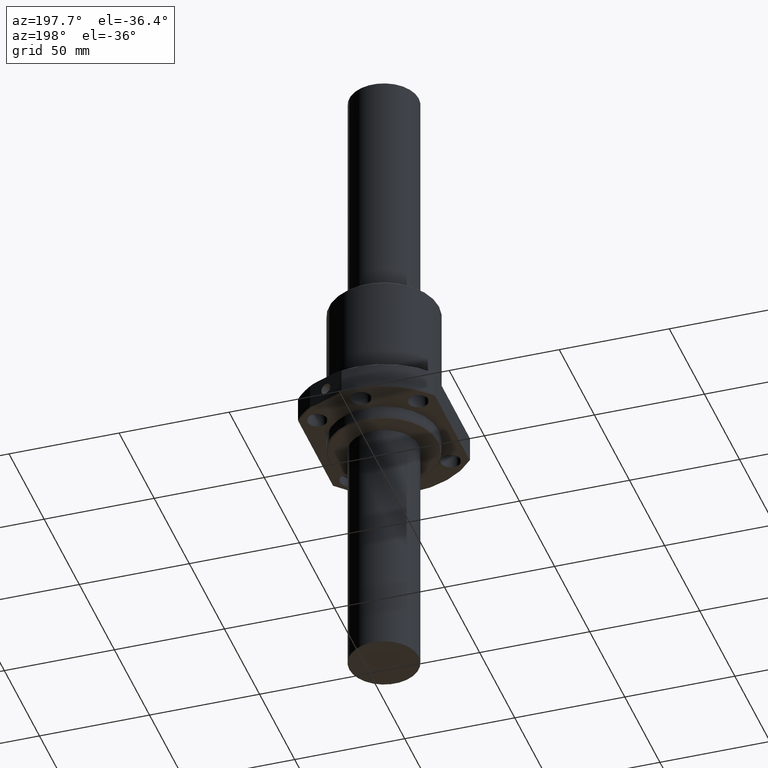
[diagram: clean part render]
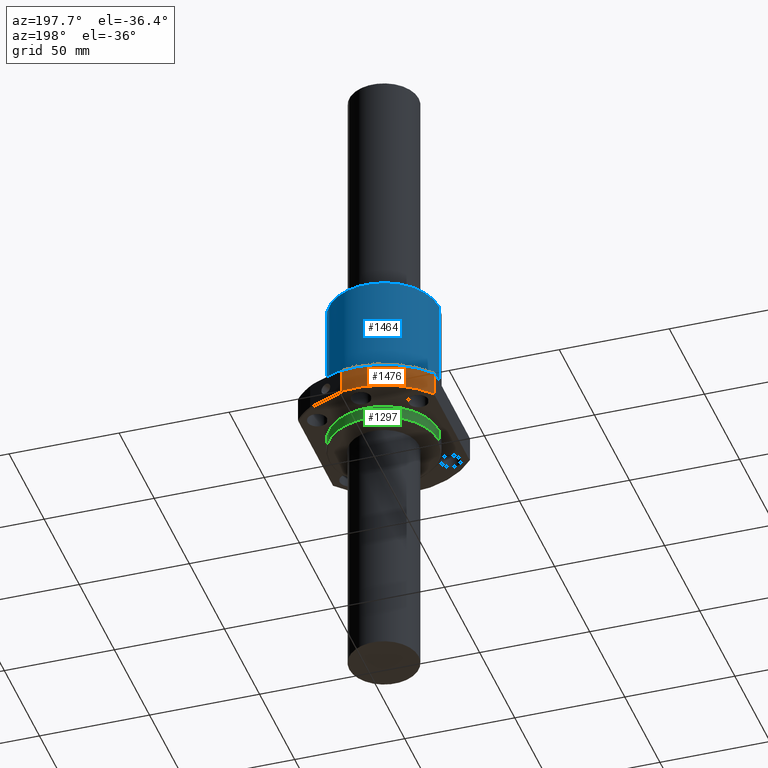
[diagram: same view with three faces highlighted in distinct colors, each labeled with its STEP entity id]
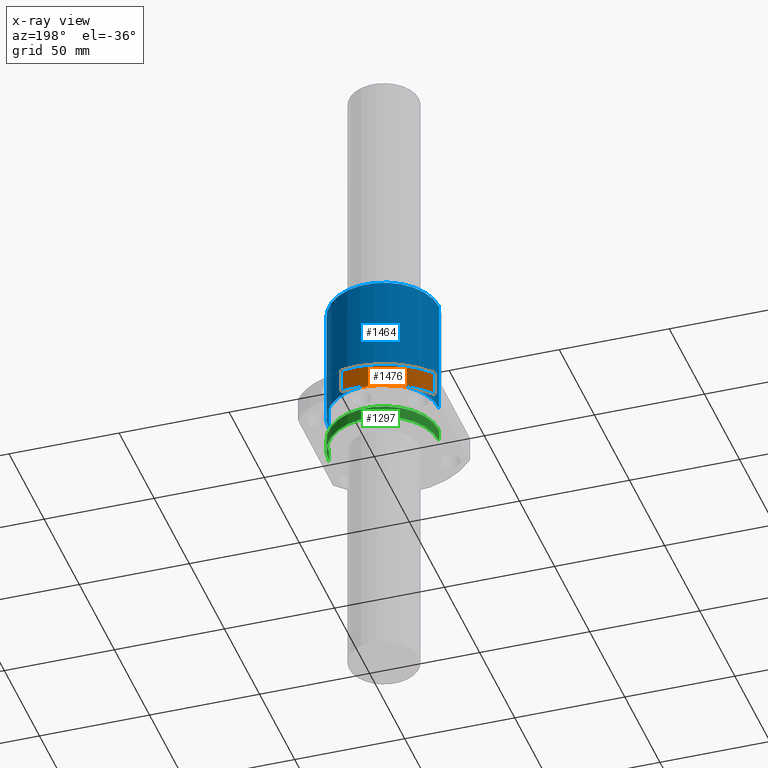
[diagram: x-ray of the same camera — body ghosted, the three highlighted faces saturated]
A machine part, auxiliary view with three faces highlighted in distinct colors.
The next image is the same camera in x-ray (body ghosted, the three faces saturated) — at least one of them is partly hidden behind the body in this view.
Their STEP definitions:

[orange] entity #1476 — the highlighted cylindrical surface (partial cylindrical patch) has radius 40 mm, axis along (0, 0, -1).
#61 = CARTESIAN_POINT ( 'NONE',  ( 30.99999999741311600, 25.27844932364660500, -6.417146550597283100 ) ) ;
#108 = CARTESIAN_POINT ( 'NONE',  ( 0.0000000000000000000, 0.0000000000000000000, -17.58284145000000000 ) ) ;
#172 = CIRCLE ( 'NONE', #1179, 40.00000000000000000 ) ;
#211 = VECTOR ( 'NONE', #728, 1000.000000000000000 ) ;
#253 = DIRECTION ( 'NONE',  ( 1.000000000000000000, -2.664535259100375700E-015, -8.673617379884035500E-017 ) ) ;
#267 = ORIENTED_EDGE ( 'NONE', *, *, #1595, .F. ) ;
#268 = DIRECTION ( 'NONE',  ( 0.0000000000000000000, 0.0000000000000000000, 1.000000000000000000 ) ) ;
#316 = DIRECTION ( 'NONE',  ( -0.0000000000000000000, -0.0000000000000000000, -1.000000000000000000 ) ) ;
#318 = CARTESIAN_POINT ( 'NONE',  ( 30.99999999741311600, 25.27844932478250300, -17.58284144868487400 ) ) ;
#388 = CARTESIAN_POINT ( 'NONE',  ( 30.99999999482623300, 25.27844932587387900, -11.99999399999999900 ) ) ;
#432 = LINE ( 'NONE', #610, #1811 ) ;
#438 = CIRCLE ( 'NONE', #883, 40.00000000000000000 ) ;
#446 = DIRECTION ( 'NONE',  ( 1.000000000000000000, 0.0000000000000000000, 0.0000000000000000000 ) ) ;
#499 = VERTEX_POINT ( 'NONE', #61 ) ;
#569 = VERTEX_POINT ( 'NONE', #1702 ) ;
#610 = CARTESIAN_POINT ( 'NONE',  ( -6.713032958999999500, 39.43266651499999400, -11.99999399999999900 ) ) ;
#688 = LINE ( 'NONE', #388, #211 ) ;
#695 = CARTESIAN_POINT ( 'NONE',  ( 0.0000000000000000000, 0.0000000000000000000, -6.417146550000002700 ) ) ;
#698 = EDGE_CURVE ( 'NONE', #784, #499, #688, .T. ) ;
#728 = DIRECTION ( 'NONE',  ( 0.0000000000000000000, 0.0000000000000000000, 1.000000000000000000 ) ) ;
#780 = DIRECTION ( 'NONE',  ( -0.0000000000000000000, -0.0000000000000000000, -1.000000000000000000 ) ) ;
#784 = VERTEX_POINT ( 'NONE', #318 ) ;
#883 = AXIS2_PLACEMENT_3D ( 'NONE', #1206, #316, #253 ) ;
#885 = EDGE_CURVE ( 'NONE', #1850, #784, #438, .T. ) ;
#1025 = FACE_OUTER_BOUND ( 'NONE', #1213, .T. ) ;
#1061 = DIRECTION ( 'NONE',  ( 0.0000000000000000000, 0.0000000000000000000, 1.000000000000000000 ) ) ;
#1075 = ORIENTED_EDGE ( 'NONE', *, *, #1563, .F. ) ;
#1179 = AXIS2_PLACEMENT_3D ( 'NONE', #695, #1061, #1251 ) ;
#1206 = CARTESIAN_POINT ( 'NONE',  ( 0.0000000000000000000, 0.0000000000000000000, -17.58284144999999700 ) ) ;
#1213 = EDGE_LOOP ( 'NONE', ( #267, #1075, #1589, #1272 ) ) ;
#1251 = DIRECTION ( 'NONE',  ( 1.000000000000000000, 0.0000000000000000000, 8.673617379884035500E-017 ) ) ;
#1272 = ORIENTED_EDGE ( 'NONE', *, *, #885, .F. ) ;
#1476 = ADVANCED_FACE ( 'NONE', ( #1025 ), #1640, .T. ) ;
#1563 = EDGE_CURVE ( 'NONE', #499, #569, #172, .T. ) ;
#1589 = ORIENTED_EDGE ( 'NONE', *, *, #698, .F. ) ;
#1595 = EDGE_CURVE ( 'NONE', #569, #1850, #432, .T. ) ;
#1640 = CYLINDRICAL_SURFACE ( 'NONE', #1758, 40.00000000000000000 ) ;
#1691 = CARTESIAN_POINT ( 'NONE',  ( -6.713032958787483300, 39.43266651508801600, -17.58284145005111300 ) ) ;
#1702 = CARTESIAN_POINT ( 'NONE',  ( -6.713032957733085800, 39.43266651552476500, -6.417146550253594500 ) ) ;
#1758 = AXIS2_PLACEMENT_3D ( 'NONE', #108, #268, #446 ) ;
#1811 = VECTOR ( 'NONE', #780, 1000.000000000000000 ) ;
#1850 = VERTEX_POINT ( 'NONE', #1691 ) ;

[blue] entity #1464 — the highlighted cylindrical surface (partial cylindrical patch) has radius 25 mm, axis along (0, 0, -1).
#87 = VERTEX_POINT ( 'NONE', #648 ) ;
#115 = ORIENTED_EDGE ( 'NONE', *, *, #1271, .F. ) ;
#164 = ORIENTED_EDGE ( 'NONE', *, *, #1166, .T. ) ;
#171 = CARTESIAN_POINT ( 'NONE',  ( -24.99999610000000100, 3.061616520256131400E-015, -17.99999400000000400 ) ) ;
#209 = VERTEX_POINT ( 'NONE', #1714 ) ;
#238 = CIRCLE ( 'NONE', #1617, 24.99999610000000100 ) ;
#246 = DIRECTION ( 'NONE',  ( 0.0000000000000000000, 0.0000000000000000000, 1.000000000000000000 ) ) ;
#281 = CARTESIAN_POINT ( 'NONE',  ( 0.0000000000000000000, 0.0000000000000000000, -72.50000029999999600 ) ) ;
#291 = CIRCLE ( 'NONE', #430, 24.99999610000000100 ) ;
#298 = VECTOR ( 'NONE', #246, 1000.000000000000000 ) ;
#430 = AXIS2_PLACEMENT_3D ( 'NONE', #281, #595, #1130 ) ;
#535 = CARTESIAN_POINT ( 'NONE',  ( 0.0000000000000000000, 0.0000000000000000000, -17.99999400000000400 ) ) ;
#595 = DIRECTION ( 'NONE',  ( -0.0000000000000000000, -0.0000000000000000000, -1.000000000000000000 ) ) ;
#635 = CARTESIAN_POINT ( 'NONE',  ( -24.99999610000000100, 3.061616520256131400E-015, -72.50000029999999600 ) ) ;
#642 = FACE_OUTER_BOUND ( 'NONE', #1118, .T. ) ;
#648 = CARTESIAN_POINT ( 'NONE',  ( 24.99999610000000100, 0.0000000000000000000, -17.99999400000000400 ) ) ;
#675 = VERTEX_POINT ( 'NONE', #772 ) ;
#683 = ORIENTED_EDGE ( 'NONE', *, *, #1175, .F. ) ;
#703 = DIRECTION ( 'NONE',  ( 0.0000000000000000000, 0.0000000000000000000, 1.000000000000000000 ) ) ;
#733 = CYLINDRICAL_SURFACE ( 'NONE', #1068, 24.99999610000000100 ) ;
#742 = LINE ( 'NONE', #1221, #1445 ) ;
#750 = CARTESIAN_POINT ( 'NONE',  ( 0.0000000000000000000, 0.0000000000000000000, -72.50000029999999600 ) ) ;
#772 = CARTESIAN_POINT ( 'NONE',  ( 24.99999610000000100, 0.0000000000000000000, -72.50000029999999600 ) ) ;
#804 = DIRECTION ( 'NONE',  ( -0.0000000000000000000, -0.0000000000000000000, -1.000000000000000000 ) ) ;
#926 = DIRECTION ( 'NONE',  ( 0.0000000000000000000, 0.0000000000000000000, 1.000000000000000000 ) ) ;
#987 = LINE ( 'NONE', #635, #298 ) ;
#1068 = AXIS2_PLACEMENT_3D ( 'NONE', #750, #926, #1111 ) ;
#1111 = DIRECTION ( 'NONE',  ( 1.000000000000000000, 0.0000000000000000000, 0.0000000000000000000 ) ) ;
#1118 = EDGE_LOOP ( 'NONE', ( #683, #164, #1389, #115 ) ) ;
#1130 = DIRECTION ( 'NONE',  ( 1.000000000000000000, 0.0000000000000000000, 0.0000000000000000000 ) ) ;
#1166 = EDGE_CURVE ( 'NONE', #209, #1454, #987, .T. ) ;
#1175 = EDGE_CURVE ( 'NONE', #209, #675, #291, .T. ) ;
#1221 = CARTESIAN_POINT ( 'NONE',  ( 24.99999610000000100, 0.0000000000000000000, -72.50000029999999600 ) ) ;
#1260 = EDGE_CURVE ( 'NONE', #1454, #87, #238, .T. ) ;
#1271 = EDGE_CURVE ( 'NONE', #675, #87, #742, .T. ) ;
#1389 = ORIENTED_EDGE ( 'NONE', *, *, #1260, .T. ) ;
#1445 = VECTOR ( 'NONE', #703, 1000.000000000000000 ) ;
#1454 = VERTEX_POINT ( 'NONE', #171 ) ;
#1464 = ADVANCED_FACE ( 'NONE', ( #642 ), #733, .T. ) ;
#1617 = AXIS2_PLACEMENT_3D ( 'NONE', #535, #804, #1841 ) ;
#1714 = CARTESIAN_POINT ( 'NONE',  ( -24.99999610000000100, 3.061616520256131400E-015, -72.50000029999999600 ) ) ;
#1841 = DIRECTION ( 'NONE',  ( 1.000000000000000000, 0.0000000000000000000, 0.0000000000000000000 ) ) ;

[green] entity #1297 — the highlighted cylindrical surface (partial cylindrical patch) has radius 25 mm, axis along (0, 0, -1).
#40 = CARTESIAN_POINT ( 'NONE',  ( -24.99999610000000100, 0.0000000000000000000, -0.5000000000000000000 ) ) ;
#102 = LINE ( 'NONE', #614, #392 ) ;
#145 = EDGE_LOOP ( 'NONE', ( #487, #617, #309, #538 ) ) ;
#239 = DIRECTION ( 'NONE',  ( 1.000000000000000000, 0.0000000000000000000, 0.0000000000000000000 ) ) ;
#307 = CIRCLE ( 'NONE', #824, 24.99999610000000100 ) ;
#309 = ORIENTED_EDGE ( 'NONE', *, *, #1141, .F. ) ;
#326 = CIRCLE ( 'NONE', #1157, 24.99999610000000100 ) ;
#330 = LINE ( 'NONE', #671, #915 ) ;
#377 = DIRECTION ( 'NONE',  ( 0.0000000000000000000, 0.0000000000000000000, 1.000000000000000000 ) ) ;
#391 = CARTESIAN_POINT ( 'NONE',  ( 0.0000000000000000000, 0.0000000000000000000, -5.999994000000000000 ) ) ;
#392 = VECTOR ( 'NONE', #959, 1000.000000000000000 ) ;
#409 = CYLINDRICAL_SURFACE ( 'NONE', #851, 24.99999610000000100 ) ;
#487 = ORIENTED_EDGE ( 'NONE', *, *, #1123, .T. ) ;
#514 = VERTEX_POINT ( 'NONE', #748 ) ;
#538 = ORIENTED_EDGE ( 'NONE', *, *, #1159, .F. ) ;
#596 = VERTEX_POINT ( 'NONE', #1596 ) ;
#614 = CARTESIAN_POINT ( 'NONE',  ( 24.99999610000000100, 0.0000000000000000000, -5.999994000000000000 ) ) ;
#617 = ORIENTED_EDGE ( 'NONE', *, *, #1117, .T. ) ;
#671 = CARTESIAN_POINT ( 'NONE',  ( -24.99999610000000100, 3.061616520256131400E-015, -5.999994000000000000 ) ) ;
#748 = CARTESIAN_POINT ( 'NONE',  ( -24.99999610000000100, 3.061616520256131400E-015, -5.999994000000000000 ) ) ;
#824 = AXIS2_PLACEMENT_3D ( 'NONE', #882, #1065, #1466 ) ;
#851 = AXIS2_PLACEMENT_3D ( 'NONE', #391, #1244, #1001 ) ;
#882 = CARTESIAN_POINT ( 'NONE',  ( 0.0000000000000000000, 0.0000000000000000000, -0.5000000000000000000 ) ) ;
#915 = VECTOR ( 'NONE', #377, 1000.000000000000000 ) ;
#959 = DIRECTION ( 'NONE',  ( 0.0000000000000000000, 0.0000000000000000000, 1.000000000000000000 ) ) ;
#1001 = DIRECTION ( 'NONE',  ( 1.000000000000000000, 0.0000000000000000000, 0.0000000000000000000 ) ) ;
#1021 = FACE_OUTER_BOUND ( 'NONE', #145, .T. ) ;
#1065 = DIRECTION ( 'NONE',  ( 0.0000000000000000000, 0.0000000000000000000, 1.000000000000000000 ) ) ;
#1082 = CARTESIAN_POINT ( 'NONE',  ( 24.99999610000000100, 0.0000000000000000000, -5.999994000000000000 ) ) ;
#1117 = EDGE_CURVE ( 'NONE', #514, #1403, #330, .T. ) ;
#1123 = EDGE_CURVE ( 'NONE', #1176, #514, #326, .T. ) ;
#1141 = EDGE_CURVE ( 'NONE', #596, #1403, #307, .T. ) ;
#1157 = AXIS2_PLACEMENT_3D ( 'NONE', #1557, #1696, #239 ) ;
#1159 = EDGE_CURVE ( 'NONE', #1176, #596, #102, .T. ) ;
#1176 = VERTEX_POINT ( 'NONE', #1082 ) ;
#1244 = DIRECTION ( 'NONE',  ( 0.0000000000000000000, 0.0000000000000000000, 1.000000000000000000 ) ) ;
#1297 = ADVANCED_FACE ( 'NONE', ( #1021 ), #409, .T. ) ;
#1403 = VERTEX_POINT ( 'NONE', #40 ) ;
#1466 = DIRECTION ( 'NONE',  ( 1.000000000000000000, 0.0000000000000000000, 0.0000000000000000000 ) ) ;
#1557 = CARTESIAN_POINT ( 'NONE',  ( 0.0000000000000000000, 0.0000000000000000000, -5.999994000000000000 ) ) ;
#1596 = CARTESIAN_POINT ( 'NONE',  ( 24.99999610000000100, 3.061616520256131800E-015, -0.5000000000000000000 ) ) ;
#1696 = DIRECTION ( 'NONE',  ( 0.0000000000000000000, 0.0000000000000000000, 1.000000000000000000 ) ) ;